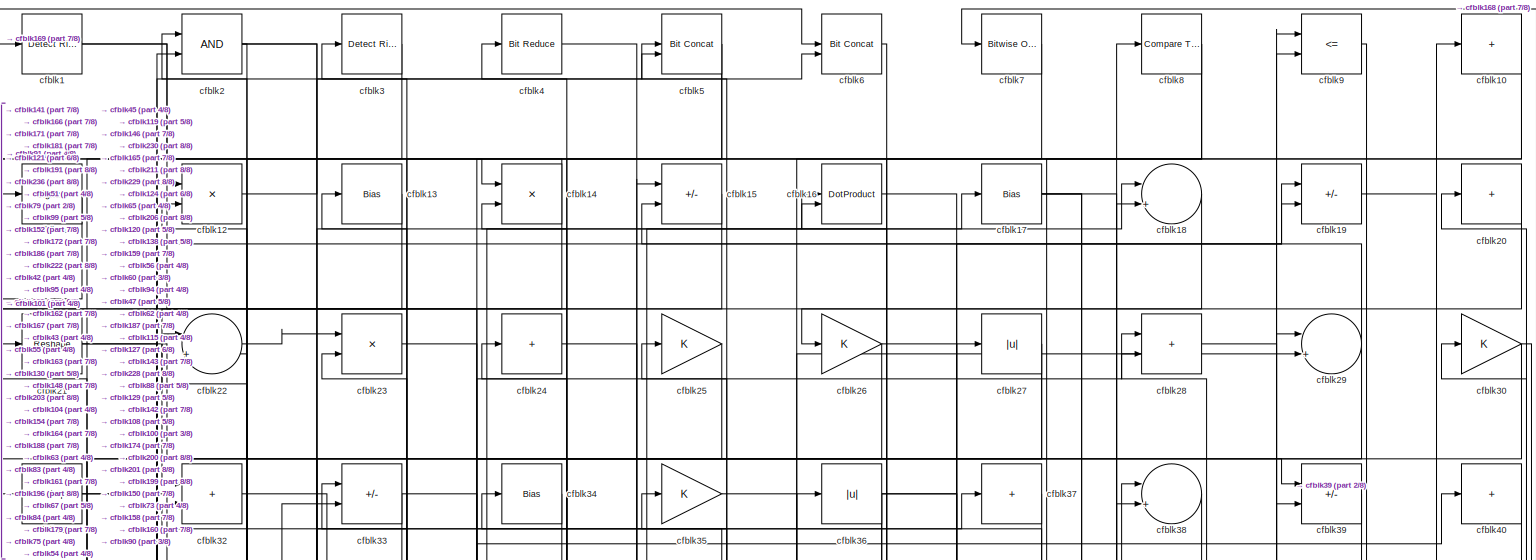
[diagram: root canvas - part 1/8, full width, top band]
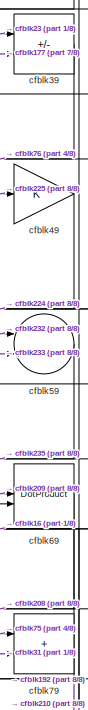
[diagram: root canvas - part 2/8, top right region]
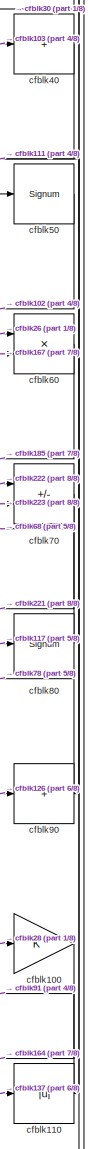
[diagram: root canvas - part 3/8, top right region]
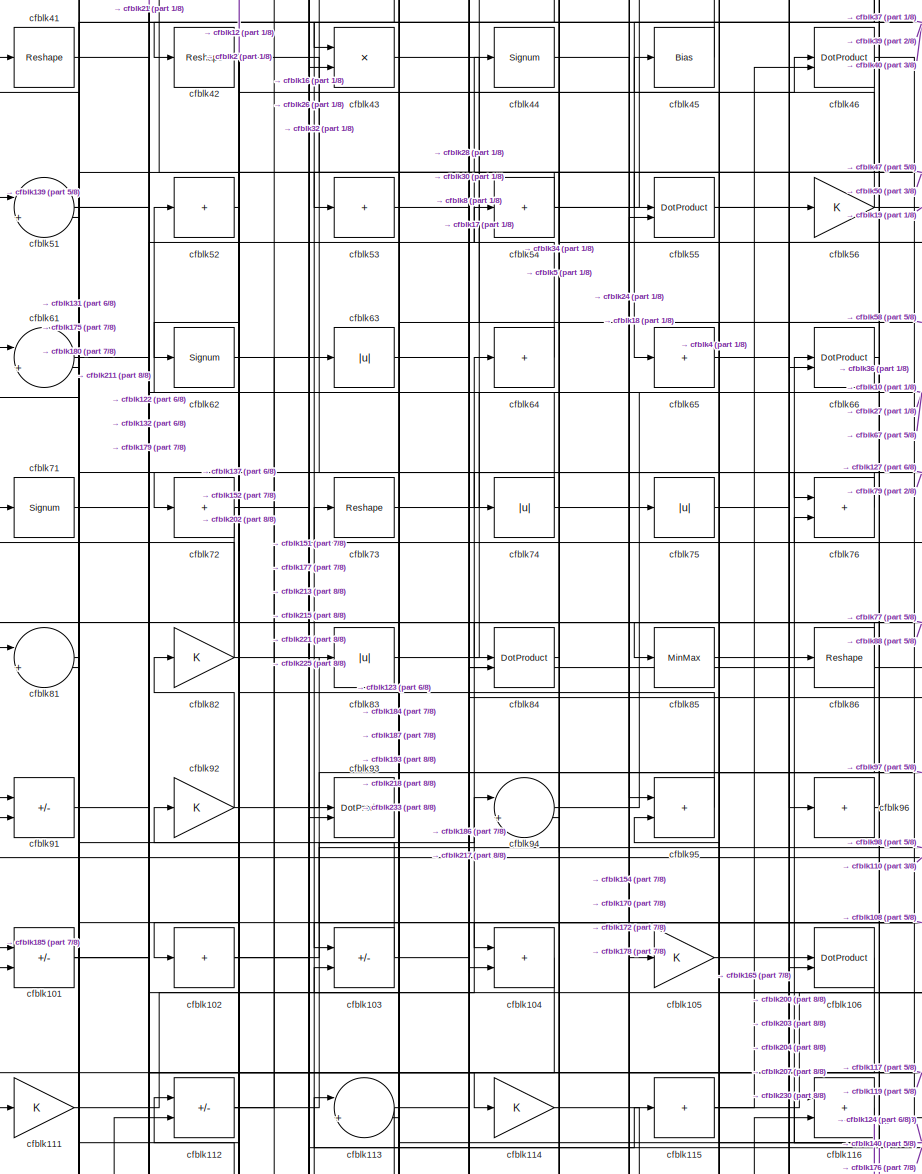
[diagram: root canvas - part 4/8, middle left region]
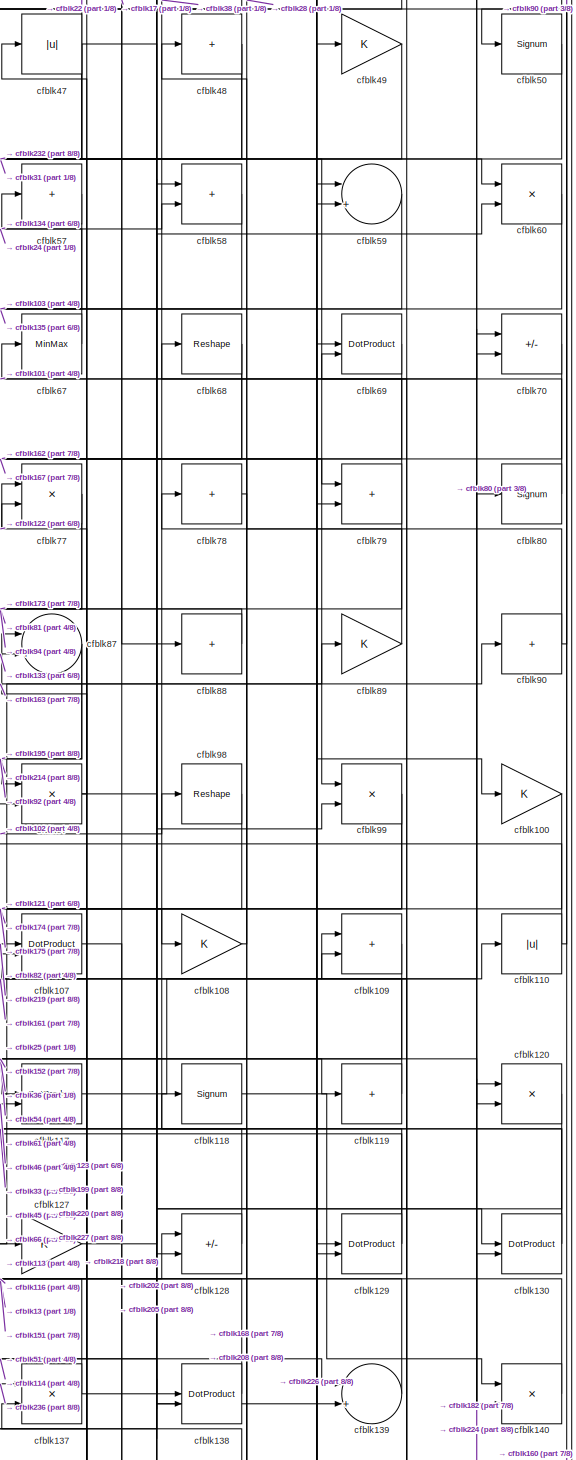
[diagram: root canvas - part 5/8, middle right region]
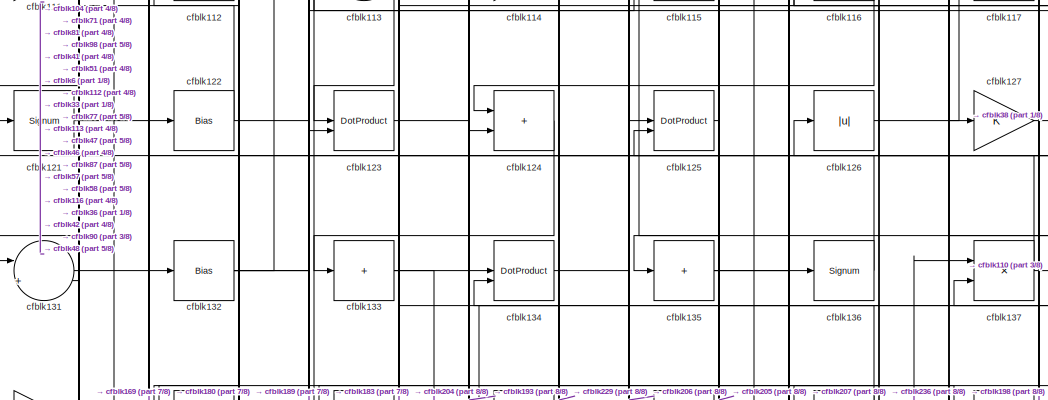
[diagram: root canvas - part 6/8, central region]
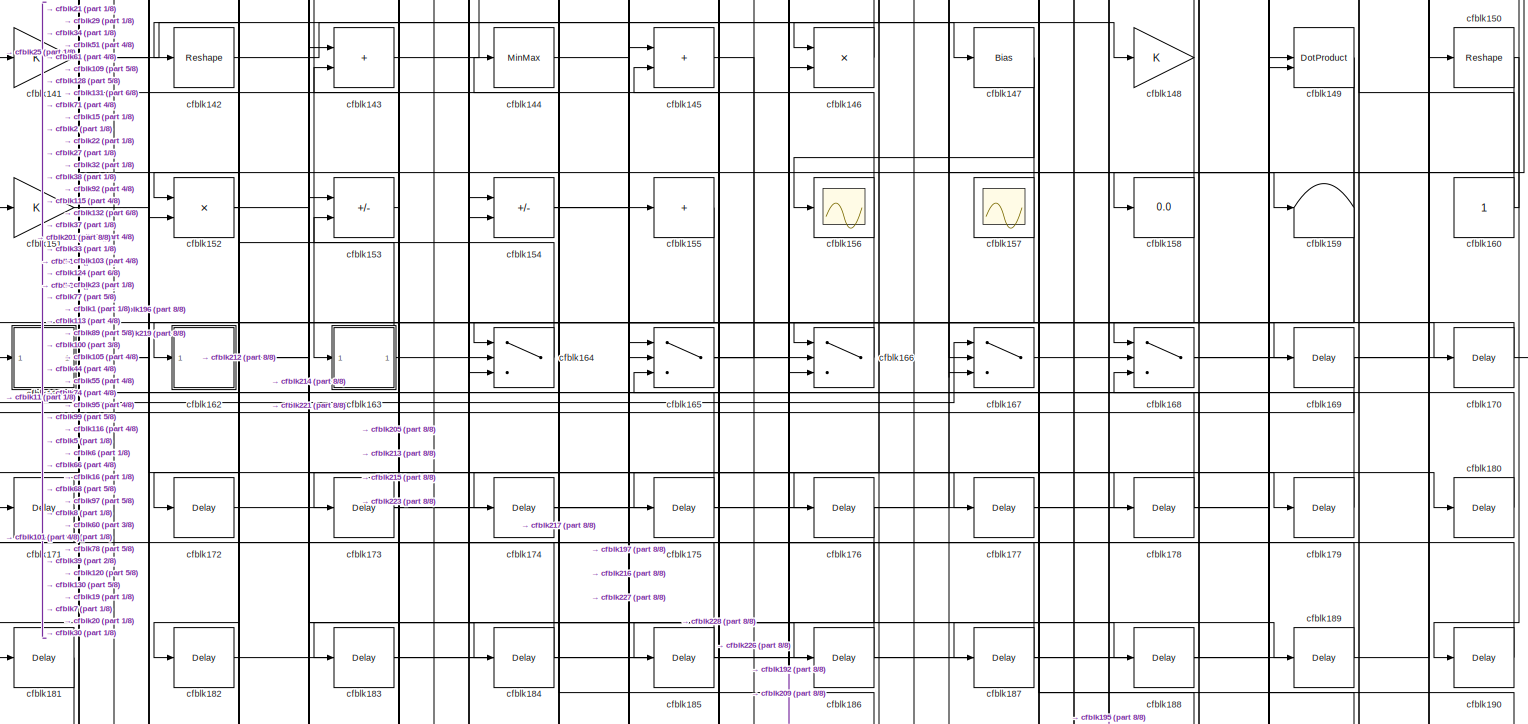
[diagram: root canvas - part 7/8, full width, bottom band]
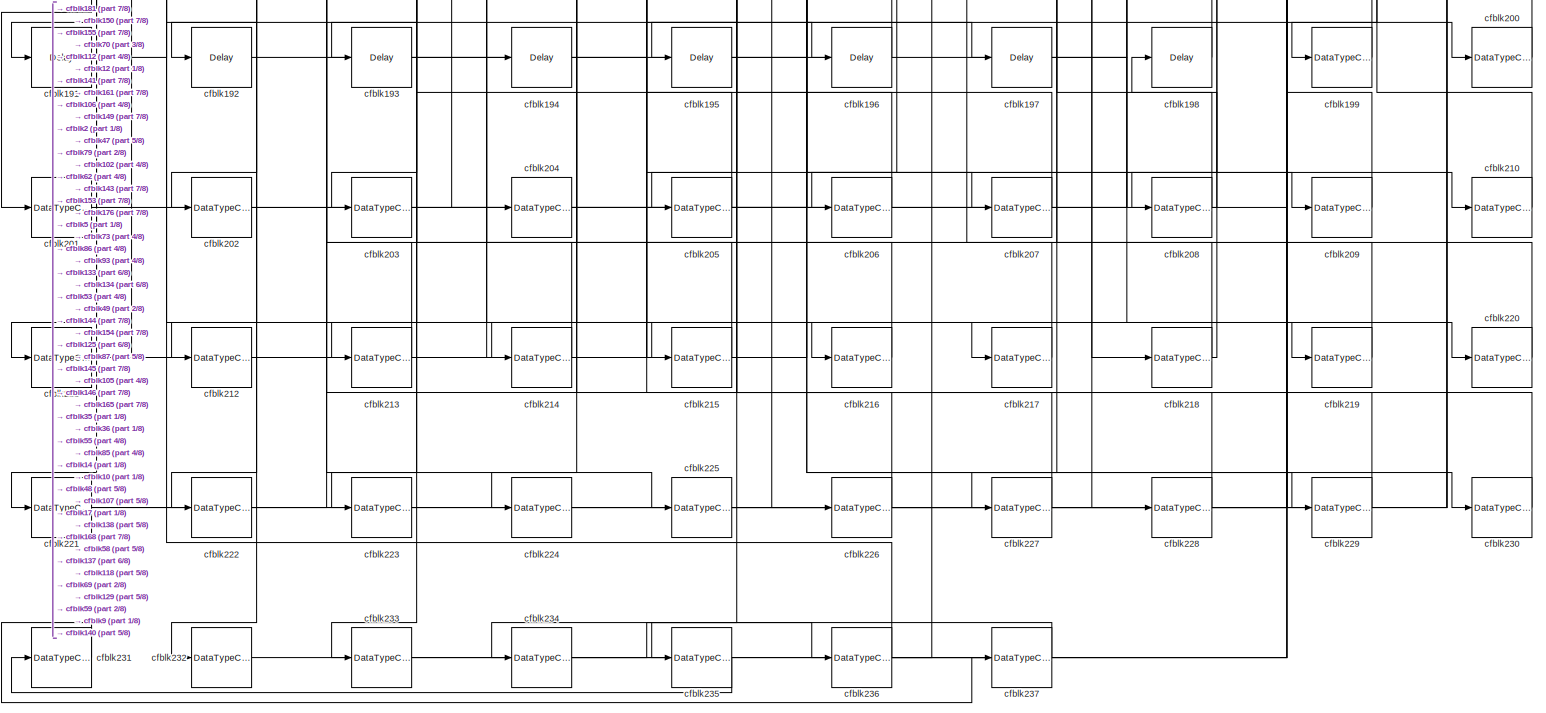
[diagram: root canvas - part 8/8, full width, bottom band]
MODEL slx_37d5fa93c8b8
KIND model
CONFIG AbsTol = auto
CONFIG EnableMultiTasking = off
CONFIG FixedStep = auto
CONFIG MaxStep = auto
CONFIG MinStep = auto
CONFIG RelTol = 1e-3
CONFIG SampleTimeConstraint = Unconstrained
CONFIG SolverName = VariableStepAuto
CONFIG StartTime = 0.0
CONFIG StopTime = 10.0
BLOCK [Reference] cfblk1  REF=hdlsllib/Logic and Bit
Operations/Detect Rise
Nonnegative
  SourceBlock = hdlsllib/Logic and Bit\nOperations/Detect Rise\nNonnegative
  SourceType = Detect Rise Nonnegative
BLOCK [Sum] cfblk10
  IconShape = rectangular
  Inputs = +
BLOCK [Gain] cfblk100
BLOCK [Sum] cfblk101
  IconShape = rectangular
  Inputs = +-
BLOCK [Sum] cfblk102
  IconShape = rectangular
  Inputs = +
BLOCK [Sum] cfblk103
  IconShape = rectangular
  Inputs = +-
BLOCK [Sum] cfblk104
  IconShape = rectangular
BLOCK [Gain] cfblk105
BLOCK [DotProduct] cfblk106
  OutDataTypeStr = Inherit: Inherit via internal rule
BLOCK [DotProduct] cfblk107
  OutDataTypeStr = Inherit: Inherit via internal rule
BLOCK [Gain] cfblk108
BLOCK [Sum] cfblk109
  IconShape = rectangular
BLOCK [Signum] cfblk11
BLOCK [Abs] cfblk110
  SaturateOnIntegerOverflow = off
BLOCK [Gain] cfblk111
BLOCK [Sum] cfblk112
  IconShape = rectangular
  Inputs = +-
BLOCK [Sum] cfblk113
  Inputs = |++
BLOCK [Gain] cfblk114
BLOCK [Sum] cfblk115
  IconShape = rectangular
  Inputs = +
BLOCK [Sum] cfblk116
  IconShape = rectangular
BLOCK [DotProduct] cfblk117
  OutDataTypeStr = Inherit: Inherit via internal rule
BLOCK [Signum] cfblk118
BLOCK [Sum] cfblk119
  IconShape = rectangular
  Inputs = +
BLOCK [Product] cfblk12
  Inputs = */
  RndMeth = Zero
  SaturateOnIntegerOverflow = on
BLOCK [Product] cfblk120
  Inputs = */
  RndMeth = Zero
  SaturateOnIntegerOverflow = on
BLOCK [Signum] cfblk121
BLOCK [Bias] cfblk122
  Bias = 0.0
  SaturateOnIntegerOverflow = off
BLOCK [DotProduct] cfblk123
  OutDataTypeStr = Inherit: Inherit via internal rule
BLOCK [Sum] cfblk124
  IconShape = rectangular
BLOCK [DotProduct] cfblk125
  OutDataTypeStr = Inherit: Inherit via internal rule
BLOCK [Abs] cfblk126
  SaturateOnIntegerOverflow = off
BLOCK [Gain] cfblk127
BLOCK [Sum] cfblk128
  IconShape = rectangular
  Inputs = +-
BLOCK [DotProduct] cfblk129
  OutDataTypeStr = Inherit: Inherit via internal rule
BLOCK [Bias] cfblk13
  Bias = 0.0
  SaturateOnIntegerOverflow = off
BLOCK [DotProduct] cfblk130
  OutDataTypeStr = Inherit: Inherit via internal rule
BLOCK [Sum] cfblk131
  Inputs = |++
BLOCK [Bias] cfblk132
  Bias = 0.0
  SaturateOnIntegerOverflow = off
BLOCK [Sum] cfblk133
  IconShape = rectangular
  Inputs = +
BLOCK [DotProduct] cfblk134
  OutDataTypeStr = Inherit: Inherit via internal rule
BLOCK [Sum] cfblk135
  IconShape = rectangular
  Inputs = +
BLOCK [Signum] cfblk136
BLOCK [Product] cfblk137
  Inputs = */
  RndMeth = Zero
  SaturateOnIntegerOverflow = on
BLOCK [DotProduct] cfblk138
  OutDataTypeStr = Inherit: Inherit via internal rule
BLOCK [Sum] cfblk139
  Inputs = |++
BLOCK [Product] cfblk14
  Inputs = */
  RndMeth = Zero
  SaturateOnIntegerOverflow = on
BLOCK [Product] cfblk140
  Inputs = */
  RndMeth = Zero
  SaturateOnIntegerOverflow = on
BLOCK [Gain] cfblk141
BLOCK [Reshape] cfblk142
BLOCK [Sum] cfblk143
  IconShape = rectangular
BLOCK [MinMax] cfblk144
BLOCK [Sum] cfblk145
  IconShape = rectangular
BLOCK [Product] cfblk146
  Inputs = */
  RndMeth = Zero
  SaturateOnIntegerOverflow = on
BLOCK [Bias] cfblk147
  Bias = 0.0
  SaturateOnIntegerOverflow = off
BLOCK [Gain] cfblk148
BLOCK [DotProduct] cfblk149
  OutDataTypeStr = Inherit: Inherit via internal rule
BLOCK [Sum] cfblk15
  IconShape = rectangular
  Inputs = +-
BLOCK [Reshape] cfblk150
BLOCK [Gain] cfblk151
BLOCK [Product] cfblk152
  Inputs = */
  RndMeth = Zero
  SaturateOnIntegerOverflow = on
BLOCK [Sum] cfblk153
  IconShape = rectangular
  Inputs = +-
BLOCK [Sum] cfblk154
  IconShape = rectangular
  Inputs = +-
BLOCK [Sum] cfblk155
  IconShape = rectangular
  Inputs = +
BLOCK [Scope] cfblk156
  Floating = off
  NumInputPorts = 1
  ScopeSpecificationString = Simulink.scopes.TimeScopeBlockCfg('CurrentConfiguration', extmgr.ConfigurationSet(extmgr.Configuration('Core','General UI',true),extmgr.Configuration('Core','Source UI',true),extmgr.Configuration('Sources','WiredSimulink',true,'DataLoggingVariableName','ScopeData2','DataLoggingSaveFormat','Array','DataLoggingLimitDataPoints',true,'DataLoggingDecimation','1'),extmgr.Configuration('Visuals','Time Do...<+868ch>
BLOCK [Scope] cfblk157
  Floating = on
  NumInputPorts = 1
  ScopeSpecificationString = Simulink.scopes.TimeScopeBlockCfg('CurrentConfiguration', extmgr.ConfigurationSet(extmgr.Configuration('Core','General UI',true,'FigureColor',[0.156862745098039 0.156862745098039 0.156862745098039]),extmgr.Configuration('Core','Source UI',true),extmgr.Configuration('Sources','WiredSimulink',true,'DataLoggingVariableName','ScopeData1','DataLoggingSaveFormat','StructureWithTime','DataLoggingLimitDat...<+2713ch>
BLOCK [Display] cfblk158
  Decimation = 1
BLOCK [Terminator] cfblk159
BLOCK [DotProduct] cfblk16
  OutDataTypeStr = Inherit: Inherit via internal rule
BLOCK [Constant] cfblk160
  SampleTime = -1
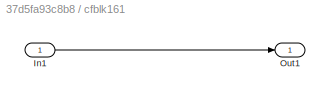
BLOCK [SubSystem] cfblk161
  LibrarySourceBlock = hdlsllib/Ports &\nSubsystems/Subsystem
BLOCK [Inport] cfblk161/In1
BLOCK [Outport] cfblk161/Out1
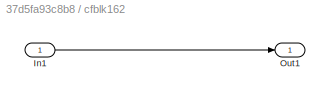
BLOCK [SubSystem] cfblk162
  LibrarySourceBlock = hdlsllib/Ports &\nSubsystems/Subsystem
BLOCK [Inport] cfblk162/In1
BLOCK [Outport] cfblk162/Out1
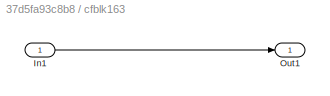
BLOCK [SubSystem] cfblk163
  LibrarySourceBlock = hdlsllib/Ports &\nSubsystems/Subsystem
BLOCK [Inport] cfblk163/In1
BLOCK [Outport] cfblk163/Out1
BLOCK [Switch] cfblk164
  InputSameDT = off
  SaturateOnIntegerOverflow = off
BLOCK [Switch] cfblk165
  InputSameDT = off
  SaturateOnIntegerOverflow = off
BLOCK [Switch] cfblk166
  InputSameDT = off
  SaturateOnIntegerOverflow = off
BLOCK [Switch] cfblk167
  InputSameDT = off
  SaturateOnIntegerOverflow = off
BLOCK [Switch] cfblk168
  InputSameDT = off
  SaturateOnIntegerOverflow = off
BLOCK [Delay] cfblk169
  InputPortMap = u0
  SampleTime = 1
BLOCK [Bias] cfblk17
  Bias = 0.0
  SaturateOnIntegerOverflow = off
BLOCK [Delay] cfblk170
  InputPortMap = u0
  SampleTime = 1
BLOCK [Delay] cfblk171
  InputPortMap = u0
  SampleTime = 1
BLOCK [Delay] cfblk172
  InputPortMap = u0
  SampleTime = 1
BLOCK [Delay] cfblk173
  InputPortMap = u0
  SampleTime = 1
BLOCK [Delay] cfblk174
  InputPortMap = u0
  SampleTime = 1
BLOCK [Delay] cfblk175
  InputPortMap = u0
  SampleTime = 1
BLOCK [Delay] cfblk176
  InputPortMap = u0
  SampleTime = 1
BLOCK [Delay] cfblk177
  InputPortMap = u0
  SampleTime = 1
BLOCK [Delay] cfblk178
  InputPortMap = u0
  SampleTime = 1
BLOCK [Delay] cfblk179
  InputPortMap = u0
  SampleTime = 1
BLOCK [Sum] cfblk18
  Inputs = |++
BLOCK [Delay] cfblk180
  InputPortMap = u0
  SampleTime = 1
BLOCK [Delay] cfblk181
  InputPortMap = u0
  SampleTime = 1
BLOCK [Delay] cfblk182
  InputPortMap = u0
  SampleTime = 1
BLOCK [Delay] cfblk183
  InputPortMap = u0
  SampleTime = 1
BLOCK [Delay] cfblk184
  InputPortMap = u0
  SampleTime = 1
BLOCK [Delay] cfblk185
  InputPortMap = u0
  SampleTime = 1
BLOCK [Delay] cfblk186
  InputPortMap = u0
  SampleTime = 1
BLOCK [Delay] cfblk187
  InputPortMap = u0
  SampleTime = 1
BLOCK [Delay] cfblk188
  InputPortMap = u0
  SampleTime = 1
BLOCK [Delay] cfblk189
  InputPortMap = u0
  SampleTime = 1
BLOCK [Sum] cfblk19
  IconShape = rectangular
  Inputs = +-
BLOCK [Delay] cfblk190
  InputPortMap = u0
  SampleTime = 1
BLOCK [Delay] cfblk191
  InputPortMap = u0
  SampleTime = 1
BLOCK [Delay] cfblk192
  InputPortMap = u0
  SampleTime = 1
BLOCK [Delay] cfblk193
  InputPortMap = u0
  SampleTime = 1
BLOCK [Delay] cfblk194
  InputPortMap = u0
  SampleTime = 1
BLOCK [Delay] cfblk195
  InputPortMap = u0
  SampleTime = 1
BLOCK [Delay] cfblk196
  InputPortMap = u0
  SampleTime = 1
BLOCK [Delay] cfblk197
  InputPortMap = u0
  SampleTime = 1
BLOCK [Delay] cfblk198
  InputPortMap = u0
  SampleTime = 1
BLOCK [DataTypeConversion] cfblk199
  OutDataTypeStr = uint8
  RndMeth = Floor
  SaturateOnIntegerOverflow = off
BLOCK [Logic] cfblk2
  AllPortsSameDT = off
  OutDataTypeStr = boolean
BLOCK [Sum] cfblk20
  IconShape = rectangular
  Inputs = +
BLOCK [DataTypeConversion] cfblk200
  OutDataTypeStr = uint8
  RndMeth = Floor
  SaturateOnIntegerOverflow = off
BLOCK [DataTypeConversion] cfblk201
  OutDataTypeStr = uint8
  RndMeth = Floor
  SaturateOnIntegerOverflow = off
BLOCK [DataTypeConversion] cfblk202
  OutDataTypeStr = uint8
  RndMeth = Floor
  SaturateOnIntegerOverflow = off
BLOCK [DataTypeConversion] cfblk203
  OutDataTypeStr = uint8
  RndMeth = Floor
  SaturateOnIntegerOverflow = off
BLOCK [DataTypeConversion] cfblk204
  OutDataTypeStr = uint8
  RndMeth = Floor
  SaturateOnIntegerOverflow = off
BLOCK [DataTypeConversion] cfblk205
  RndMeth = Floor
  SaturateOnIntegerOverflow = off
BLOCK [DataTypeConversion] cfblk206
  OutDataTypeStr = uint8
  RndMeth = Floor
  SaturateOnIntegerOverflow = off
BLOCK [DataTypeConversion] cfblk207
  OutDataTypeStr = uint8
  RndMeth = Floor
  SaturateOnIntegerOverflow = off
BLOCK [DataTypeConversion] cfblk208
  RndMeth = Floor
  SaturateOnIntegerOverflow = off
BLOCK [DataTypeConversion] cfblk209
  OutDataTypeStr = uint8
  RndMeth = Floor
  SaturateOnIntegerOverflow = off
BLOCK [Reshape] cfblk21
BLOCK [DataTypeConversion] cfblk210
  OutDataTypeStr = uint8
  RndMeth = Floor
  SaturateOnIntegerOverflow = off
BLOCK [DataTypeConversion] cfblk211
  RndMeth = Floor
  SaturateOnIntegerOverflow = off
BLOCK [DataTypeConversion] cfblk212
  OutDataTypeStr = uint8
  RndMeth = Floor
  SaturateOnIntegerOverflow = off
BLOCK [DataTypeConversion] cfblk213
  RndMeth = Floor
  SaturateOnIntegerOverflow = off
BLOCK [DataTypeConversion] cfblk214
  OutDataTypeStr = uint8
  RndMeth = Floor
  SaturateOnIntegerOverflow = off
BLOCK [DataTypeConversion] cfblk215
  OutDataTypeStr = uint8
  RndMeth = Floor
  SaturateOnIntegerOverflow = off
BLOCK [DataTypeConversion] cfblk216
  OutDataTypeStr = uint8
  RndMeth = Floor
  SaturateOnIntegerOverflow = off
BLOCK [DataTypeConversion] cfblk217
  OutDataTypeStr = uint8
  RndMeth = Floor
  SaturateOnIntegerOverflow = off
BLOCK [DataTypeConversion] cfblk218
  RndMeth = Floor
  SaturateOnIntegerOverflow = off
BLOCK [DataTypeConversion] cfblk219
  OutDataTypeStr = uint8
  RndMeth = Floor
  SaturateOnIntegerOverflow = off
BLOCK [Sum] cfblk22
  Inputs = |++
BLOCK [DataTypeConversion] cfblk220
  OutDataTypeStr = uint8
  RndMeth = Floor
  SaturateOnIntegerOverflow = off
BLOCK [DataTypeConversion] cfblk221
  RndMeth = Floor
  SaturateOnIntegerOverflow = off
BLOCK [DataTypeConversion] cfblk222
  OutDataTypeStr = uint8
  RndMeth = Floor
  SaturateOnIntegerOverflow = off
BLOCK [DataTypeConversion] cfblk223
  OutDataTypeStr = uint8
  RndMeth = Floor
  SaturateOnIntegerOverflow = off
BLOCK [DataTypeConversion] cfblk224
  OutDataTypeStr = uint8
  RndMeth = Floor
  SaturateOnIntegerOverflow = off
BLOCK [DataTypeConversion] cfblk225
  OutDataTypeStr = uint8
  RndMeth = Floor
  SaturateOnIntegerOverflow = off
BLOCK [DataTypeConversion] cfblk226
  RndMeth = Floor
  SaturateOnIntegerOverflow = off
BLOCK [DataTypeConversion] cfblk227
  OutDataTypeStr = uint8
  RndMeth = Floor
  SaturateOnIntegerOverflow = off
BLOCK [DataTypeConversion] cfblk228
  OutDataTypeStr = uint8
  RndMeth = Floor
  SaturateOnIntegerOverflow = off
BLOCK [DataTypeConversion] cfblk229
  OutDataTypeStr = uint8
  RndMeth = Floor
  SaturateOnIntegerOverflow = off
BLOCK [Product] cfblk23
  Inputs = */
  RndMeth = Zero
  SaturateOnIntegerOverflow = on
BLOCK [DataTypeConversion] cfblk230
  OutDataTypeStr = uint8
  RndMeth = Floor
  SaturateOnIntegerOverflow = off
BLOCK [DataTypeConversion] cfblk231
  RndMeth = Floor
  SaturateOnIntegerOverflow = off
BLOCK [DataTypeConversion] cfblk232
  OutDataTypeStr = uint8
  RndMeth = Floor
  SaturateOnIntegerOverflow = off
BLOCK [DataTypeConversion] cfblk233
  OutDataTypeStr = uint8
  RndMeth = Floor
  SaturateOnIntegerOverflow = off
BLOCK [DataTypeConversion] cfblk234
  RndMeth = Floor
  SaturateOnIntegerOverflow = off
BLOCK [DataTypeConversion] cfblk235
  OutDataTypeStr = uint8
  RndMeth = Floor
  SaturateOnIntegerOverflow = off
BLOCK [DataTypeConversion] cfblk236
  RndMeth = Floor
  SaturateOnIntegerOverflow = off
BLOCK [DataTypeConversion] cfblk237
  OutDataTypeStr = uint8
  RndMeth = Floor
  SaturateOnIntegerOverflow = off
BLOCK [Sum] cfblk24
  IconShape = rectangular
  Inputs = +
BLOCK [Gain] cfblk25
BLOCK [Gain] cfblk26
BLOCK [Abs] cfblk27
  SaturateOnIntegerOverflow = off
BLOCK [Sum] cfblk28
  IconShape = rectangular
BLOCK [Sum] cfblk29
  Inputs = |++
BLOCK [Reference] cfblk3  REF=hdlsllib/Logic and Bit
Operations/Detect Rise
Positive
  SourceBlock = hdlsllib/Logic and Bit\nOperations/Detect Rise\nPositive
  SourceType = Detect Rise Positive
BLOCK [Gain] cfblk30
BLOCK [Reshape] cfblk31
BLOCK [Sum] cfblk32
  IconShape = rectangular
BLOCK [Sum] cfblk33
  IconShape = rectangular
  Inputs = +-
BLOCK [Bias] cfblk34
  Bias = 0.0
  SaturateOnIntegerOverflow = off
BLOCK [Gain] cfblk35
BLOCK [Abs] cfblk36
  SaturateOnIntegerOverflow = off
BLOCK [Sum] cfblk37
  IconShape = rectangular
  Inputs = +
BLOCK [Sum] cfblk38
  Inputs = |++
BLOCK [Sum] cfblk39
  IconShape = rectangular
  Inputs = +-
BLOCK [Reference] cfblk4  REF=hdlsllib/Logic and Bit
Operations/Bit Reduce
  SourceBlock = hdlsllib/Logic and Bit\nOperations/Bit Reduce
  SourceType = Bit Reduce
BLOCK [Sum] cfblk40
  IconShape = rectangular
  Inputs = +
BLOCK [Reshape] cfblk41
BLOCK [Reshape] cfblk42
BLOCK [Product] cfblk43
  Inputs = */
  RndMeth = Zero
  SaturateOnIntegerOverflow = on
BLOCK [Signum] cfblk44
BLOCK [Bias] cfblk45
  Bias = 0.0
  SaturateOnIntegerOverflow = off
BLOCK [DotProduct] cfblk46
  OutDataTypeStr = Inherit: Inherit via internal rule
BLOCK [Abs] cfblk47
  SaturateOnIntegerOverflow = off
BLOCK [Sum] cfblk48
  IconShape = rectangular
  Inputs = +
BLOCK [Gain] cfblk49
BLOCK [Reference] cfblk5  REF=hdlsllib/Logic and Bit
Operations/Bit Concat
  SourceBlock = hdlsllib/Logic and Bit\nOperations/Bit Concat
  SourceType = Bit Concat
BLOCK [Signum] cfblk50
BLOCK [Sum] cfblk51
  Inputs = |++
BLOCK [Sum] cfblk52
  IconShape = rectangular
  Inputs = +
BLOCK [Sum] cfblk53
  IconShape = rectangular
  Inputs = +
BLOCK [Sum] cfblk54
  IconShape = rectangular
  Inputs = +
BLOCK [DotProduct] cfblk55
  OutDataTypeStr = Inherit: Inherit via internal rule
BLOCK [Gain] cfblk56
BLOCK [Sum] cfblk57
  IconShape = rectangular
  Inputs = +
BLOCK [Sum] cfblk58
  IconShape = rectangular
BLOCK [Sum] cfblk59
  Inputs = |++
BLOCK [Reference] cfblk6  REF=hdlsllib/Logic and Bit
Operations/Bit Concat
  SourceBlock = hdlsllib/Logic and Bit\nOperations/Bit Concat
  SourceType = Bit Concat
BLOCK [Product] cfblk60
  Inputs = */
  RndMeth = Zero
  SaturateOnIntegerOverflow = on
BLOCK [Sum] cfblk61
  Inputs = |++
BLOCK [Signum] cfblk62
BLOCK [Abs] cfblk63
  SaturateOnIntegerOverflow = off
BLOCK [Sum] cfblk64
  IconShape = rectangular
  Inputs = +
BLOCK [Sum] cfblk65
  IconShape = rectangular
  Inputs = +
BLOCK [DotProduct] cfblk66
  OutDataTypeStr = Inherit: Inherit via internal rule
BLOCK [MinMax] cfblk67
BLOCK [Reshape] cfblk68
BLOCK [DotProduct] cfblk69
  OutDataTypeStr = Inherit: Inherit via internal rule
BLOCK [Reference] cfblk7  REF=simulink/Logic and Bit
Operations/Bitwise
Operator
  LibrarySourceBlock = hdlsllib/Logic and Bit\nOperations/Bitwise\nOperator
  SourceBlock = simulink/Logic and Bit\nOperations/Bitwise\nOperator
  SourceType = Bitwise Operator
BLOCK [Sum] cfblk70
  IconShape = rectangular
  Inputs = +-
BLOCK [Signum] cfblk71
BLOCK [Sum] cfblk72
  IconShape = rectangular
  Inputs = +
BLOCK [Reshape] cfblk73
BLOCK [Abs] cfblk74
  SaturateOnIntegerOverflow = off
BLOCK [Abs] cfblk75
  SaturateOnIntegerOverflow = off
BLOCK [Sum] cfblk76
  IconShape = rectangular
BLOCK [Product] cfblk77
  Inputs = */
  RndMeth = Zero
  SaturateOnIntegerOverflow = on
BLOCK [Sum] cfblk78
  IconShape = rectangular
  Inputs = +
BLOCK [Sum] cfblk79
  IconShape = rectangular
BLOCK [Reference] cfblk8  REF=hdlsllib/Logic and Bit
Operations/Compare
To Constant
  SourceBlock = hdlsllib/Logic and Bit\nOperations/Compare\nTo Constant
  SourceType = Compare To Constant
BLOCK [Signum] cfblk80
BLOCK [Sum] cfblk81
  Inputs = |++
BLOCK [Gain] cfblk82
BLOCK [Abs] cfblk83
  SaturateOnIntegerOverflow = off
BLOCK [DotProduct] cfblk84
  OutDataTypeStr = Inherit: Inherit via internal rule
BLOCK [MinMax] cfblk85
BLOCK [Reshape] cfblk86
BLOCK [Sum] cfblk87
  Inputs = |++
BLOCK [Sum] cfblk88
  IconShape = rectangular
  Inputs = +
BLOCK [Gain] cfblk89
BLOCK [RelationalOperator] cfblk9
  InputSameDT = off
  Operator = <=
  OutDataTypeStr = boolean
BLOCK [Sum] cfblk90
  IconShape = rectangular
  Inputs = +
BLOCK [Sum] cfblk91
  IconShape = rectangular
  Inputs = +-
BLOCK [Gain] cfblk92
BLOCK [DotProduct] cfblk93
  OutDataTypeStr = Inherit: Inherit via internal rule
BLOCK [Sum] cfblk94
  Inputs = |++
BLOCK [Sum] cfblk95
  IconShape = rectangular
BLOCK [Sum] cfblk96
  IconShape = rectangular
  Inputs = +
BLOCK [Product] cfblk97
  Inputs = */
  RndMeth = Zero
  SaturateOnIntegerOverflow = on
BLOCK [Reshape] cfblk98
BLOCK [Product] cfblk99
  Inputs = */
  RndMeth = Zero
  SaturateOnIntegerOverflow = on
LINE cfblk100:1 -> cfblk164:1
NET cfblk101:1 -> cfblk114:1, cfblk67:1
NET cfblk102:1 -> cfblk215:1, cfblk98:1
NET cfblk103:1 -> cfblk40:1, cfblk61:1
LINE cfblk104:1 -> cfblk131:2
LINE cfblk105:1 -> cfblk207:1
LINE cfblk106:1 -> cfblk202:1
LINE cfblk107:1 -> cfblk218:1
LINE cfblk108:1 -> cfblk28:1
LINE cfblk109:1 -> cfblk152:2
NET cfblk10:1 -> cfblk206:1, cfblk91:2
NET cfblk110:1 -> cfblk50:1, cfblk91:1
LINE cfblk111:1 -> cfblk64:1
NET cfblk112:1 -> cfblk63:1, cfblk94:1
NET cfblk113:1 -> cfblk123:1, cfblk186:1
LINE cfblk114:1 -> cfblk139:1
NET cfblk115:1 -> cfblk18:2, cfblk46:2
LINE cfblk116:1 -> cfblk124:1
LINE cfblk117:1 -> cfblk80:1
LINE cfblk118:1 -> cfblk140:1
LINE cfblk119:1 -> cfblk25:1
LINE cfblk11:1 -> cfblk167:1
LINE cfblk120:1 -> cfblk128:2
LINE cfblk121:1 -> cfblk6:2
NET cfblk122:1 -> cfblk71:1, cfblk77:1
LINE cfblk123:1 -> cfblk46:1
LINE cfblk124:1 -> cfblk183:1
LINE cfblk125:1 -> cfblk205:1
LINE cfblk126:1 -> cfblk90:1
LINE cfblk127:1 -> cfblk38:2
LINE cfblk128:1 -> cfblk66:1
NET cfblk129:1 -> cfblk113:1, cfblk38:1
LINE cfblk12:1 -> cfblk5:2
NET cfblk130:1 -> cfblk33:1, cfblk45:1
LINE cfblk131:1 -> cfblk169:1
NET cfblk132:1 -> cfblk180:1, cfblk189:1, cfblk33:2
NET cfblk133:1 -> cfblk204:1, cfblk87:2
LINE cfblk134:1 -> cfblk57:1
NET cfblk135:1 -> cfblk136:1, cfblk58:2
LINE cfblk136:1 -> cfblk126:1
NET cfblk137:1 -> cfblk110:1, cfblk112:1
LINE cfblk138:1 -> cfblk13:1
LINE cfblk139:1 -> cfblk51:1
LINE cfblk13:1 -> cfblk31:1
LINE cfblk140:1 -> cfblk116:1
NET cfblk141:1 -> cfblk147:1, cfblk196:1
LINE cfblk142:1 -> cfblk148:1
LINE cfblk143:1 -> cfblk8:1
LINE cfblk144:1 -> cfblk216:1
LINE cfblk145:1 -> cfblk226:1
LINE cfblk146:1 -> cfblk5:1
NET cfblk147:1 -> cfblk156:1, cfblk165:2
NET cfblk148:1 -> cfblk182:1, cfblk3:1
NET cfblk149:1 -> cfblk164:2, cfblk212:1
NET cfblk14:1 -> cfblk11:1, cfblk32:1
NET cfblk150:1 -> cfblk190:1, cfblk191:1
LINE cfblk151:1 -> cfblk128:1
NET cfblk152:1 -> cfblk115:1, cfblk92:1
LINE cfblk153:1 -> cfblk213:1
NET cfblk154:1 -> cfblk105:1, cfblk197:1
LINE cfblk155:1 -> cfblk211:1
LINE cfblk15:1 -> cfblk152:1
NET cfblk160:1 -> cfblk109:2, cfblk20:1
LINE cfblk161/In1:1 -> cfblk161/Out1:1
NET cfblk161:1 -> cfblk109:1, cfblk219:1
LINE cfblk162/In1:1 -> cfblk162/Out1:1
NET cfblk162:1 -> cfblk184:1, cfblk37:1
LINE cfblk163/In1:1 -> cfblk163/Out1:1
NET cfblk163:1 -> cfblk22:1, cfblk89:1
LINE cfblk164:1 -> cfblk23:2
NET cfblk165:1 -> cfblk116:2, cfblk209:1, cfblk29:2
LINE cfblk166:1 -> cfblk21:1
LINE cfblk167:1 -> cfblk60:2
NET cfblk168:1 -> cfblk120:1, cfblk7:1
LINE cfblk169:1 -> cfblk1:1
LINE cfblk16:1 -> cfblk159:1
LINE cfblk170:1 -> cfblk166:1
LINE cfblk171:1 -> cfblk6:1
LINE cfblk172:1 -> cfblk55:2
LINE cfblk173:1 -> cfblk97:2
LINE cfblk174:1 -> cfblk29:1
LINE cfblk175:1 -> cfblk61:2
LINE cfblk176:1 -> cfblk223:1
LINE cfblk177:1 -> cfblk39:2
LINE cfblk178:1 -> cfblk95:2
LINE cfblk179:1 -> cfblk15:1
NET cfblk17:1 -> cfblk130:1, cfblk228:1, cfblk88:1
LINE cfblk180:1 -> cfblk51:2
LINE cfblk181:1 -> cfblk201:1
LINE cfblk182:1 -> cfblk130:2
LINE cfblk183:1 -> cfblk149:2
LINE cfblk184:1 -> cfblk113:2
LINE cfblk185:1 -> cfblk101:1
LINE cfblk186:1 -> cfblk32:2
LINE cfblk187:1 -> cfblk103:2
LINE cfblk188:1 -> cfblk168:3
LINE cfblk189:1 -> cfblk165:3
LINE cfblk18:1 -> cfblk101:2
LINE cfblk190:1 -> cfblk166:2
LINE cfblk191:1 -> cfblk2:2
LINE cfblk192:1 -> cfblk146:2
LINE cfblk193:1 -> cfblk134:1
LINE cfblk194:1 -> cfblk210:1
LINE cfblk195:1 -> cfblk168:2
LINE cfblk196:1 -> cfblk14:2
LINE cfblk197:1 -> cfblk220:1
LINE cfblk198:1 -> cfblk137:2
LINE cfblk199:1 -> cfblk47:1
LINE cfblk19:1 -> cfblk150:1
NET cfblk1:1 -> cfblk14:1, cfblk154:2
LINE cfblk200:1 -> cfblk9:1
LINE cfblk201:1 -> cfblk9:2
LINE cfblk202:1 -> cfblk58:1
LINE cfblk203:1 -> cfblk106:1
LINE cfblk204:1 -> cfblk106:2
NET cfblk205:1 -> cfblk138:1, cfblk143:2
LINE cfblk206:1 -> cfblk125:1
LINE cfblk207:1 -> cfblk125:2
NET cfblk208:1 -> cfblk118:1, cfblk87:1
LINE cfblk209:1 -> cfblk69:1
LINE cfblk20:1 -> cfblk26:1
LINE cfblk210:1 -> cfblk69:2
NET cfblk211:1 -> cfblk112:2, cfblk165:1, cfblk36:1
LINE cfblk212:1 -> cfblk155:1
NET cfblk213:1 -> cfblk194:1, cfblk93:1
LINE cfblk214:1 -> cfblk153:1
LINE cfblk215:1 -> cfblk153:2
LINE cfblk216:1 -> cfblk154:1
LINE cfblk217:1 -> cfblk144:1
NET cfblk218:1 -> cfblk198:1, cfblk73:1
LINE cfblk219:1 -> cfblk107:1
NET cfblk21:1 -> cfblk43:1, cfblk83:1
LINE cfblk220:1 -> cfblk107:2
NET cfblk221:1 -> cfblk149:1, cfblk93:2
LINE cfblk222:1 -> cfblk70:1
LINE cfblk223:1 -> cfblk70:2
LINE cfblk224:1 -> cfblk140:2
LINE cfblk225:1 -> cfblk49:1
NET cfblk226:1 -> cfblk129:1, cfblk143:1
LINE cfblk227:1 -> cfblk145:1
LINE cfblk228:1 -> cfblk145:2
LINE cfblk229:1 -> cfblk134:2
LINE cfblk22:1 -> cfblk23:1
LINE cfblk230:1 -> cfblk35:1
LINE cfblk231:1 -> cfblk237:1
LINE cfblk232:1 -> cfblk59:1
LINE cfblk233:1 -> cfblk59:2
LINE cfblk234:1 -> cfblk236:1
LINE cfblk235:1 -> cfblk231:1
NET cfblk236:1 -> cfblk129:2, cfblk12:1, cfblk137:1
LINE cfblk237:1 -> cfblk234:1
LINE cfblk23:1 -> cfblk39:1
LINE cfblk24:1 -> cfblk75:1
LINE cfblk25:1 -> cfblk141:1
NET cfblk26:1 -> cfblk43:2, cfblk60:1
NET cfblk27:1 -> cfblk104:1, cfblk172:1
LINE cfblk28:1 -> cfblk100:1
NET cfblk29:1 -> cfblk15:2, cfblk171:1
NET cfblk2:1 -> cfblk167:2, cfblk222:1, cfblk84:2
NET cfblk30:1 -> cfblk104:2, cfblk158:1
NET cfblk31:1 -> cfblk79:2, cfblk99:1
LINE cfblk32:1 -> cfblk55:1
NET cfblk33:1 -> cfblk163:1, cfblk188:1
LINE cfblk34:1 -> cfblk161:1
LINE cfblk35:1 -> cfblk229:1
NET cfblk36:1 -> cfblk120:2, cfblk124:2, cfblk138:2, cfblk65:1
LINE cfblk37:1 -> cfblk62:1
LINE cfblk38:1 -> cfblk142:1
LINE cfblk39:1 -> cfblk76:1
LINE cfblk3:1 -> cfblk181:1
LINE cfblk40:1 -> cfblk111:1
LINE cfblk41:1 -> cfblk122:1
LINE cfblk42:1 -> cfblk127:1
LINE cfblk43:1 -> cfblk96:1
LINE cfblk44:1 -> cfblk170:1
LINE cfblk45:1 -> cfblk4:1
NET cfblk46:1 -> cfblk117:2, cfblk66:2
NET cfblk47:1 -> cfblk133:1, cfblk139:2, cfblk22:2, cfblk232:1, cfblk81:2
NET cfblk48:1 -> cfblk123:2, cfblk227:1
LINE cfblk49:1 -> cfblk224:1
LINE cfblk4:1 -> cfblk95:1
LINE cfblk50:1 -> cfblk102:1
NET cfblk51:1 -> cfblk132:1, cfblk19:2
LINE cfblk52:1 -> cfblk72:1
LINE cfblk53:1 -> cfblk217:1
NET cfblk54:1 -> cfblk117:1, cfblk18:1, cfblk53:1
NET cfblk55:1 -> cfblk230:1, cfblk56:1
NET cfblk56:1 -> cfblk12:2, cfblk19:1
LINE cfblk57:1 -> cfblk135:1
LINE cfblk58:1 -> cfblk103:1
LINE cfblk59:1 -> cfblk235:1
NET cfblk5:1 -> cfblk203:1, cfblk84:1
LINE cfblk60:1 -> cfblk185:1
LINE cfblk61:1 -> cfblk119:1
NET cfblk62:1 -> cfblk16:2, cfblk225:1
LINE cfblk63:1 -> cfblk28:2
LINE cfblk64:1 -> cfblk44:1
LINE cfblk65:1 -> cfblk86:1
LINE cfblk66:1 -> cfblk176:1
LINE cfblk67:1 -> cfblk24:1
NET cfblk68:1 -> cfblk162:1, cfblk167:3
LINE cfblk69:1 -> cfblk208:1
LINE cfblk6:1 -> cfblk146:1
LINE cfblk70:1 -> cfblk221:1
LINE cfblk71:1 -> cfblk179:1
NET cfblk72:1 -> cfblk151:1, cfblk177:1
LINE cfblk73:1 -> cfblk10:1
NET cfblk74:1 -> cfblk178:1, cfblk52:1
LINE cfblk75:1 -> cfblk79:1
LINE cfblk76:1 -> cfblk74:1
NET cfblk77:1 -> cfblk173:1, cfblk94:2
LINE cfblk78:1 -> cfblk168:1
NET cfblk79:1 -> cfblk16:1, cfblk192:1
LINE cfblk7:1 -> cfblk166:3
LINE cfblk80:1 -> cfblk68:1
LINE cfblk81:1 -> cfblk131:1
NET cfblk82:1 -> cfblk108:1, cfblk41:1
LINE cfblk83:1 -> cfblk17:1
LINE cfblk84:1 -> cfblk34:1
LINE cfblk85:1 -> cfblk200:1
NET cfblk86:1 -> cfblk233:1, cfblk85:1
NET cfblk87:1 -> cfblk195:1, cfblk214:1
LINE cfblk88:1 -> cfblk81:1
LINE cfblk89:1 -> cfblk48:1
NET cfblk8:1 -> cfblk164:3, cfblk187:1, cfblk42:1
NET cfblk90:1 -> cfblk30:1, cfblk78:1
LINE cfblk91:1 -> cfblk54:1
NET cfblk92:1 -> cfblk82:1, cfblk97:1
LINE cfblk93:1 -> cfblk193:1
LINE cfblk94:1 -> cfblk27:1
LINE cfblk95:1 -> cfblk2:1
LINE cfblk96:1 -> cfblk76:2
NET cfblk97:1 -> cfblk77:2, cfblk99:2
LINE cfblk98:1 -> cfblk121:1
NET cfblk99:1 -> cfblk174:1, cfblk175:1
LINE cfblk9:1 -> cfblk199:1
note: NET lines group one-source signal fan-out (src -> all destinations, sorted); 1:1 wires keep LINE
